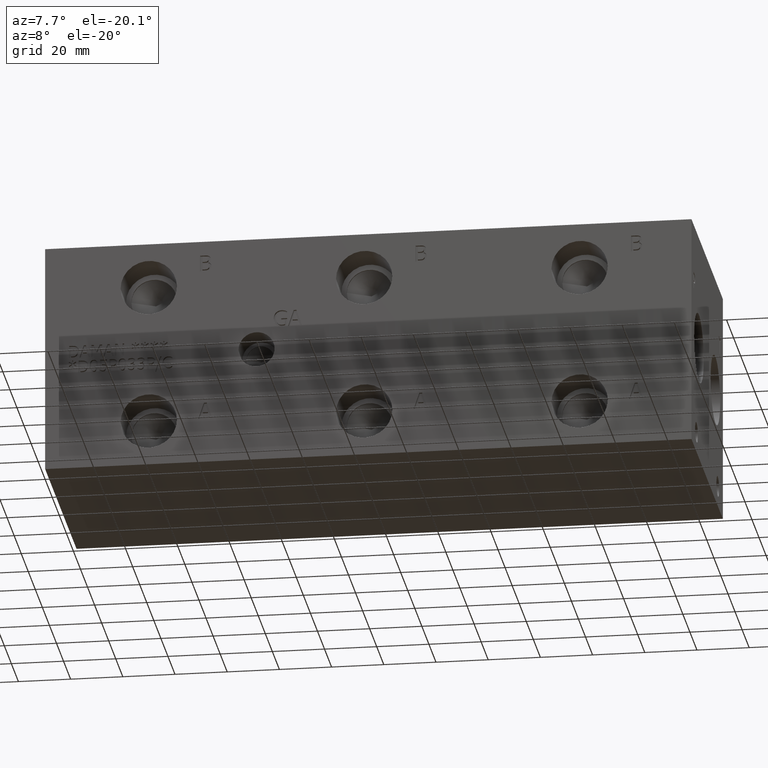
[diagram: clean part render]
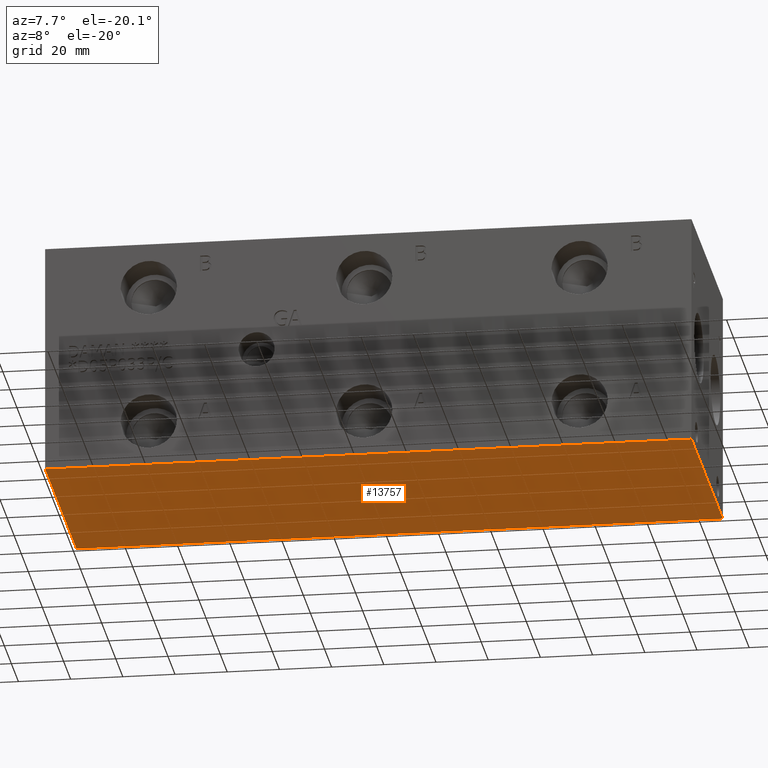
[diagram: same view with one face highlighted and labeled with its STEP entity id]
A machine part, auxiliary view. The second image highlights one B-rep face of the part: STEP entity #13757.
In plain terms, the highlighted planar face has unit normal (0, 0, 1).
Its self-contained STEP definition (entity closure, byte-faithful):
#1803=FACE_OUTER_BOUND('',#2629,.T.);
#2629=EDGE_LOOP('',(#12120,#12121,#12122,#12123));
#2663=LINE('',#17408,#3907);
#3605=LINE('',#22331,#4849);
#3664=LINE('',#22603,#4908);
#3872=LINE('',#23784,#5116);
#3907=VECTOR('',#14606,10.);
#4849=VECTOR('',#16160,10.);
#4908=VECTOR('',#16273,10.);
#5116=VECTOR('',#17327,10.);
#5140=VERTEX_POINT('',#17406);
#5141=VERTEX_POINT('',#17407);
#6024=VERTEX_POINT('',#22330);
#6082=VERTEX_POINT('',#22602);
#6466=EDGE_CURVE('',#5140,#5141,#2663,.T.);
#7774=EDGE_CURVE('',#6024,#5140,#3605,.T.);
#7857=EDGE_CURVE('',#5141,#6082,#3664,.T.);
#8328=EDGE_CURVE('',#6082,#6024,#3872,.T.);
#12120=ORIENTED_EDGE('',*,*,#6466,.F.);
#12121=ORIENTED_EDGE('',*,*,#7774,.F.);
#12122=ORIENTED_EDGE('',*,*,#8328,.F.);
#12123=ORIENTED_EDGE('',*,*,#7857,.F.);
#12517=PLANE('',#14544);
#13757=ADVANCED_FACE('',(#1803),#12517,.F.);
#14544=AXIS2_PLACEMENT_3D('',#23789,#17335,#17336);
#14606=DIRECTION('',(1.,0.,0.));
#16160=DIRECTION('',(0.,-1.,0.));
#16273=DIRECTION('',(0.,1.,0.));
#17327=DIRECTION('',(-1.,0.,0.));
#17335=DIRECTION('center_axis',(0.,0.,1.));
#17336=DIRECTION('ref_axis',(1.,0.,0.));
#17406=CARTESIAN_POINT('',(0.,0.,0.));
#17407=CARTESIAN_POINT('',(247.65,0.,0.));
#17408=CARTESIAN_POINT('',(0.,0.,0.));
#22330=CARTESIAN_POINT('',(0.,88.9,0.));
#22331=CARTESIAN_POINT('',(0.,88.9,0.));
#22602=CARTESIAN_POINT('',(247.65,88.9,0.));
#22603=CARTESIAN_POINT('',(247.65,0.,0.));
#23784=CARTESIAN_POINT('',(247.65,88.9,0.));
#23789=CARTESIAN_POINT('Origin',(123.825,44.45,0.));